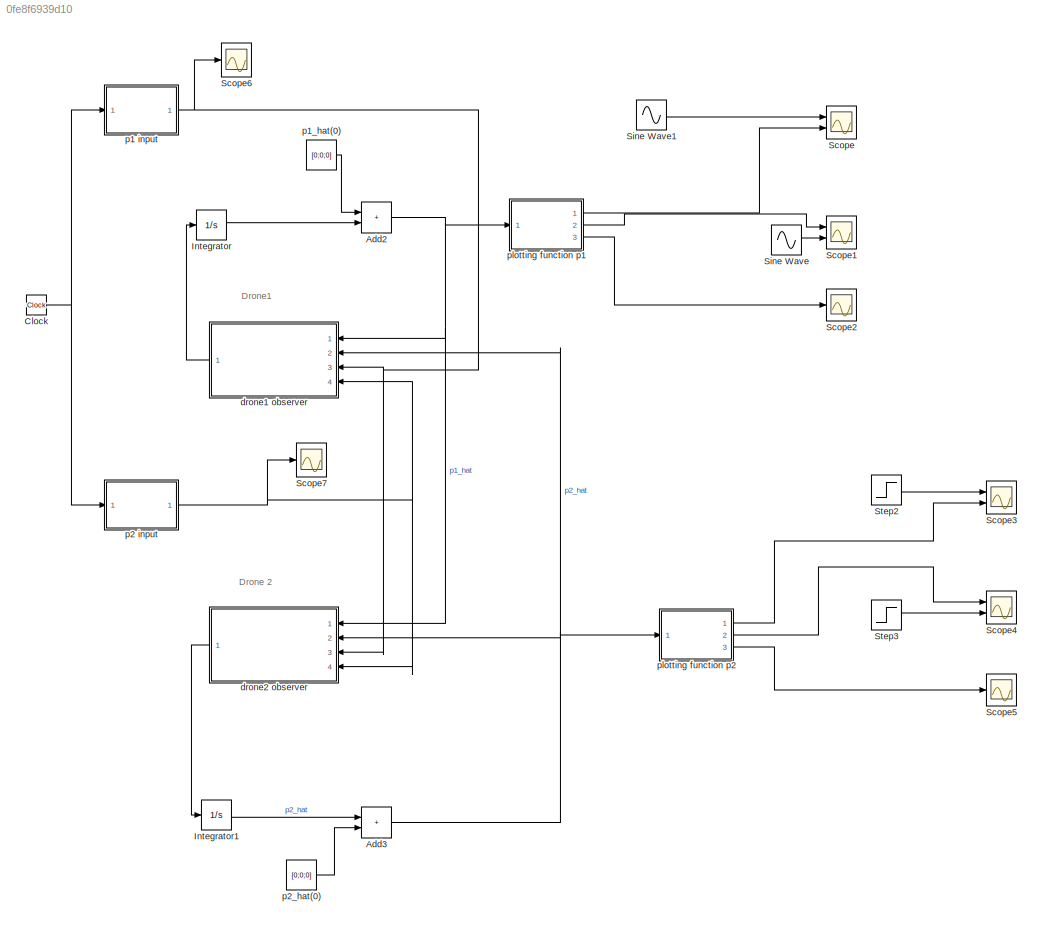
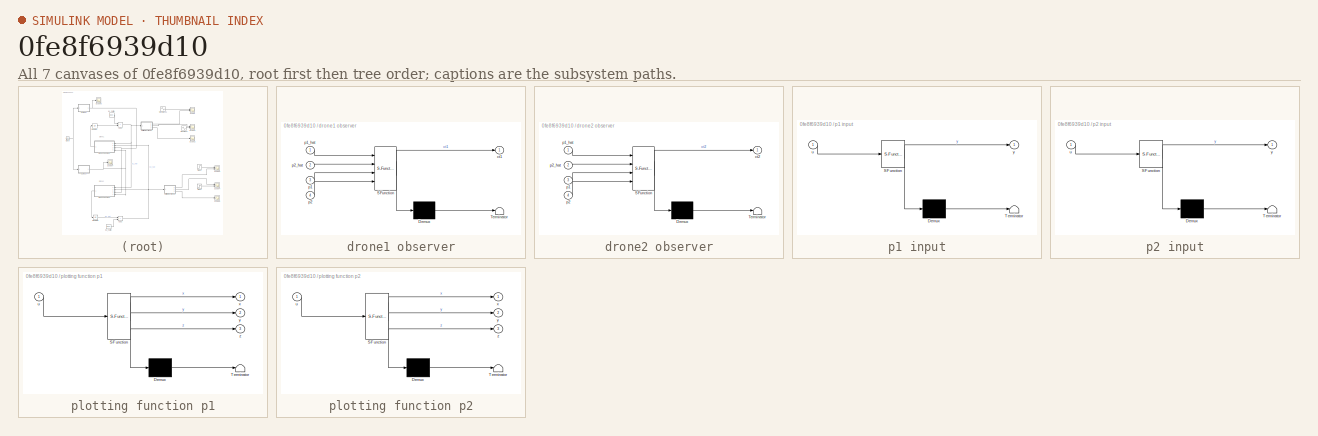
[diagram: thumbnail index - all 7 canvases of the model, root first then tree order]
MODEL slx_0fe8f6939d10
KIND model
CONFIG AbsTol = auto
CONFIG EnableMultiTasking = off
CONFIG FixedStep = auto
CONFIG MaxStep = auto
CONFIG MinStep = auto
CONFIG RelTol = 1e-3
CONFIG SampleTimeConstraint = Unconstrained
CONFIG SolverName = VariableStepAuto
CONFIG StartTime = 0.0
CONFIG StopTime = 20
BLOCK [Sum] Add2
  IconShape = rectangular
  Ports = [2, 1]
BLOCK [Sum] Add3
  IconShape = rectangular
  Ports = [2, 1]
BLOCK [Clock] Clock
BLOCK [Integrator] Integrator
  Ports = [1, 1]
BLOCK [Integrator] Integrator1
  Ports = [1, 1]
BLOCK [Scope] Scope
  Floating = off
  NumInputPorts = 2
  Ports = [2]
  ScopeSpecificationString = Simulink.scopes.TimeScopeBlockCfg('CurrentConfiguration', extmgr.ConfigurationSet(extmgr.Configuration('Core','General UI',true),extmgr.Configuration('Core','Source UI',true),extmgr.Configuration('Sources','WiredSimulink',true),extmgr.Configuration('Visuals','Time Domain',true,'SerializedDisplays',{struct('MinYLimReal','-2.47325','MaxYLimReal','1.00000','YLabelReal','','MinYLimMag','0.00000','MaxY...<+1403ch>
BLOCK [Scope] Scope1
  Floating = off
  NumInputPorts = 2
  Ports = [2]
  ScopeSpecificationString = Simulink.scopes.TimeScopeBlockCfg('CurrentConfiguration', extmgr.ConfigurationSet(extmgr.Configuration('Core','General UI',true),extmgr.Configuration('Core','Source UI',true),extmgr.Configuration('Sources','WiredSimulink',true,'DataLoggingVariableName','ScopeData1'),extmgr.Configuration('Visuals','Time Domain',true,'SerializedDisplays',{struct('MinYLimReal','-1.25761','MaxYLimReal','1.16915','YLab...<+1462ch>
BLOCK [Scope] Scope2
  Floating = off
  NumInputPorts = 1
  Ports = [1]
  ScopeSpecificationString = Simulink.scopes.TimeScopeBlockCfg('CurrentConfiguration', extmgr.ConfigurationSet(extmgr.Configuration('Core','General UI',true),extmgr.Configuration('Core','Source UI',true),extmgr.Configuration('Sources','WiredSimulink',true,'DataLoggingVariableName','ScopeData2'),extmgr.Configuration('Visuals','Time Domain',true,'SerializedDisplays',{struct('MinYLimReal','-1.00000','MaxYLimReal','1.00000','YLab...<+1381ch>
BLOCK [Scope] Scope3
  Floating = off
  NumInputPorts = 2
  Ports = [2]
  ScopeSpecificationString = Simulink.scopes.TimeScopeBlockCfg('CurrentConfiguration', extmgr.ConfigurationSet(extmgr.Configuration('Core','General UI',true),extmgr.Configuration('Core','Source UI',true),extmgr.Configuration('Sources','WiredSimulink',true,'DataLoggingVariableName','ScopeData1'),extmgr.Configuration('Visuals','Time Domain',true,'SerializedDisplays',{struct('MinYLimReal','-0.362','MaxYLimReal','2.26244','YLabel...<+1385ch>
BLOCK [Scope] Scope4
  Floating = off
  NumInputPorts = 2
  Ports = [2]
  ScopeSpecificationString = Simulink.scopes.TimeScopeBlockCfg('CurrentConfiguration', extmgr.ConfigurationSet(extmgr.Configuration('Core','General UI',true),extmgr.Configuration('Core','Source UI',true),extmgr.Configuration('Sources','WiredSimulink',true,'DataLoggingVariableName','ScopeData2'),extmgr.Configuration('Visuals','Time Domain',true,'SerializedDisplays',{struct('MinYLimReal','-0.25','MaxYLimReal','2.25','YLabelReal...<+1421ch>
BLOCK [Scope] Scope5
  Floating = off
  NumInputPorts = 1
  Ports = [1]
  ScopeSpecificationString = Simulink.scopes.TimeScopeBlockCfg('CurrentConfiguration', extmgr.ConfigurationSet(extmgr.Configuration('Core','General UI',true),extmgr.Configuration('Core','Source UI',true),extmgr.Configuration('Sources','WiredSimulink',true,'DataLoggingVariableName','ScopeData3'),extmgr.Configuration('Visuals','Time Domain',true,'SerializedDisplays',{struct('MinYLimReal','-1.00000','MaxYLimReal','1.00000','YLab...<+1381ch>
BLOCK [Scope] Scope6
  Floating = off
  NumInputPorts = 1
  Ports = [1]
  ScopeSpecificationString = Simulink.scopes.TimeScopeBlockCfg('CurrentConfiguration', extmgr.ConfigurationSet(extmgr.Configuration('Core','General UI',true),extmgr.Configuration('Core','Source UI',true),extmgr.Configuration('Sources','WiredSimulink',true,'DataLoggingVariableName','ScopeData1'),extmgr.Configuration('Visuals','Time Domain',true,'SerializedDisplays',{struct('MinYLimReal','-1.24999','MaxYLimReal','1.25','YLabelR...<+1383ch>
BLOCK [Scope] Scope7
  Floating = off
  NumInputPorts = 1
  Ports = [1]
  ScopeSpecificationString = Simulink.scopes.TimeScopeBlockCfg('CurrentConfiguration', extmgr.ConfigurationSet(extmgr.Configuration('Core','General UI',true),extmgr.Configuration('Core','Source UI',true),extmgr.Configuration('Sources','WiredSimulink',true,'DataLoggingVariableName','ScopeData1'),extmgr.Configuration('Visuals','Time Domain',true,'SerializedDisplays',{struct('MinYLimReal','-0.25','MaxYLimReal','2.25','YLabelReal...<+1377ch>
BLOCK [Sin] Sine Wave
  Ports = [0, 1]
  SampleTime = 0
BLOCK [Sin] Sine Wave1
  Phase = 1.57
  Ports = [0, 1]
  SampleTime = 0
BLOCK [Step] Step2
  After = 2
  SampleTime = 0
  Time = 0.1
BLOCK [Step] Step3
  After = 2
  SampleTime = 0
  Time = 0.1
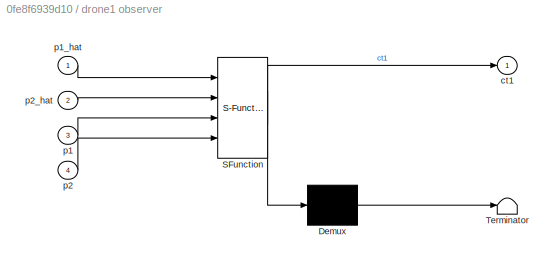
BLOCK [SubSystem] drone1 observer
  ErrorFcn = Stateflow.Translate.translate
  PermitHierarchicalResolution = ExplicitOnly
  Ports = [4, 1]
  RequestExecContextInheritance = off
  SFBlockType = MATLAB Function
  TreatAsAtomicUnit = on
BLOCK [Demux] drone1 observer/ Demux 
  Outputs = 1
  Ports = [1, 1]
BLOCK [S-Function] drone1 observer/ SFunction 
  EnableBusSupport = on
  FunctionName = sf_sfun
  Parameters = a1,a2,a3
  PortCounts = [4 2]
  Ports = [4, 2]
  SFcnIsStateOwnerBlock = off
  SFunctionDeploymentMode = off
  Tag = Stateflow S-Function 2
BLOCK [Terminator] drone1 observer/ Terminator 
BLOCK [Outport] drone1 observer/ct1
BLOCK [Inport] drone1 observer/p1
  Port = 3
BLOCK [Inport] drone1 observer/p1_hat
BLOCK [Inport] drone1 observer/p2
  Port = 4
BLOCK [Inport] drone1 observer/p2_hat
  Port = 2
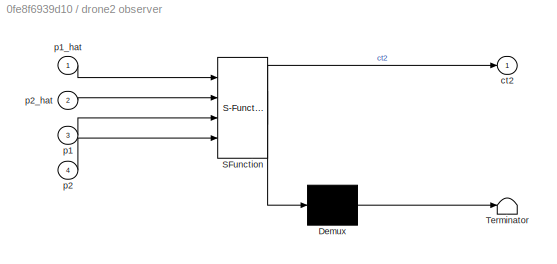
BLOCK [SubSystem] drone2 observer
  ErrorFcn = Stateflow.Translate.translate
  PermitHierarchicalResolution = ExplicitOnly
  Ports = [4, 1]
  RequestExecContextInheritance = off
  SFBlockType = MATLAB Function
  TreatAsAtomicUnit = on
BLOCK [Demux] drone2 observer/ Demux 
  Outputs = 1
  Ports = [1, 1]
BLOCK [S-Function] drone2 observer/ SFunction 
  EnableBusSupport = on
  FunctionName = sf_sfun
  Parameters = a1,a2,a3
  PortCounts = [4 2]
  Ports = [4, 2]
  SFcnIsStateOwnerBlock = off
  SFunctionDeploymentMode = off
  Tag = Stateflow S-Function 1
BLOCK [Terminator] drone2 observer/ Terminator 
BLOCK [Outport] drone2 observer/ct2
BLOCK [Inport] drone2 observer/p1
  Port = 3
BLOCK [Inport] drone2 observer/p1_hat
BLOCK [Inport] drone2 observer/p2
  Port = 4
BLOCK [Inport] drone2 observer/p2_hat
  Port = 2
BLOCK [SubSystem] p1 input
  ErrorFcn = Stateflow.Translate.translate
  PermitHierarchicalResolution = ExplicitOnly
  Ports = [1, 1]
  RequestExecContextInheritance = off
  SFBlockType = MATLAB Function
  SystemSampleTime = 0.1
  TreatAsAtomicUnit = on
BLOCK [Demux] p1 input/ Demux 
  Outputs = 1
  Ports = [1, 1]
BLOCK [S-Function] p1 input/ SFunction 
  EnableBusSupport = on
  FunctionName = sf_sfun
  PortCounts = [1 2]
  Ports = [1, 2]
  SFcnIsStateOwnerBlock = off
  SFunctionDeploymentMode = off
  Tag = Stateflow S-Function 5
BLOCK [Terminator] p1 input/ Terminator 
BLOCK [Inport] p1 input/u
BLOCK [Outport] p1 input/y
BLOCK [Constant] p1_hat(0)
  Value = [0;0;0]
  VectorParams1D = off
BLOCK [SubSystem] p2 input
  ErrorFcn = Stateflow.Translate.translate
  PermitHierarchicalResolution = ExplicitOnly
  Ports = [1, 1]
  RequestExecContextInheritance = off
  SFBlockType = MATLAB Function
  SystemSampleTime = 0.1
  TreatAsAtomicUnit = on
BLOCK [Demux] p2 input/ Demux 
  Outputs = 1
  Ports = [1, 1]
BLOCK [S-Function] p2 input/ SFunction 
  EnableBusSupport = on
  FunctionName = sf_sfun
  PortCounts = [1 2]
  Ports = [1, 2]
  SFcnIsStateOwnerBlock = off
  SFunctionDeploymentMode = off
  Tag = Stateflow S-Function 6
BLOCK [Terminator] p2 input/ Terminator 
BLOCK [Inport] p2 input/u
BLOCK [Outport] p2 input/y
BLOCK [Constant] p2_hat(0)
  Value = [0;0;0]
  VectorParams1D = off
BLOCK [SubSystem] plotting function p1
  ErrorFcn = Stateflow.Translate.translate
  PermitHierarchicalResolution = ExplicitOnly
  Ports = [1, 3]
  RequestExecContextInheritance = off
  SFBlockType = MATLAB Function
  TreatAsAtomicUnit = on
BLOCK [Demux] plotting function p1/ Demux 
  Outputs = 1
  Ports = [1, 1]
BLOCK [S-Function] plotting function p1/ SFunction 
  EnableBusSupport = on
  FunctionName = sf_sfun
  PortCounts = [1 4]
  Ports = [1, 4]
  SFcnIsStateOwnerBlock = off
  SFunctionDeploymentMode = off
  Tag = Stateflow S-Function 3
BLOCK [Terminator] plotting function p1/ Terminator 
BLOCK [Inport] plotting function p1/u
BLOCK [Outport] plotting function p1/x
BLOCK [Outport] plotting function p1/y
  Port = 2
BLOCK [Outport] plotting function p1/z
  Port = 3
BLOCK [SubSystem] plotting function p2
  ErrorFcn = Stateflow.Translate.translate
  PermitHierarchicalResolution = ExplicitOnly
  Ports = [1, 3]
  RequestExecContextInheritance = off
  SFBlockType = MATLAB Function
  TreatAsAtomicUnit = on
BLOCK [Demux] plotting function p2/ Demux 
  Outputs = 1
  Ports = [1, 1]
BLOCK [S-Function] plotting function p2/ SFunction 
  EnableBusSupport = on
  FunctionName = sf_sfun
  PortCounts = [1 4]
  Ports = [1, 4]
  SFcnIsStateOwnerBlock = off
  SFunctionDeploymentMode = off
  Tag = Stateflow S-Function 4
BLOCK [Terminator] plotting function p2/ Terminator 
BLOCK [Inport] plotting function p2/u
BLOCK [Outport] plotting function p2/x
BLOCK [Outport] plotting function p2/y
  Port = 2
BLOCK [Outport] plotting function p2/z
  Port = 3
ANNOTATION (root): Drone 2
ANNOTATION (root): Drone1
NET Add2:1 -> drone1 observer:1, drone2 observer:1, plotting function p1:1
NET Add3:1 -> drone1 observer:2, drone2 observer:2, plotting function p2:1
NET Clock:1 -> p1 input:1, p2 input:1
LINE Integrator1:1 -> Add3:1
LINE Integrator:1 -> Add2:2
LINE Sine Wave1:1 -> Scope:1
LINE Sine Wave:1 -> Scope1:2
LINE Step2:1 -> Scope3:1
LINE Step3:1 -> Scope4:2
LINE drone1 observer:1 -> Integrator:1
LINE drone2 observer:1 -> Integrator1:1
NET p1 input:1 -> Scope6:1, drone1 observer:3, drone2 observer:3
LINE p1_hat(0):1 -> Add2:1
NET p2 input:1 -> Scope7:1, drone1 observer:4, drone2 observer:4
LINE p2_hat(0):1 -> Add3:2
LINE plotting function p1:1 -> Scope:2
LINE plotting function p1:2 -> Scope1:1
LINE plotting function p1:3 -> Scope2:1
LINE plotting function p2:1 -> Scope3:2
LINE plotting function p2:2 -> Scope4:1
LINE plotting function p2:3 -> Scope5:1
note: NET lines group one-source signal fan-out (src -> all destinations, sorted); 1:1 wires keep LINE
CHART drone2 observer states=1 transitions=1
  STATE_LABEL 'eML_blk_kernel()'
  STATE_LABEL 'SCRIPT:\nfunction ct2 = fcn2(p1_hat, p2_hat,a2, a3, p1, p2, a1)\n\n% vel2 considering the second drone is just hovering in 2d space\n    vel2 = [0;0;0];\n    \n%calculating the ranges manually\n    d11 = norm(p1-a1);\n    d13 = norm(p1-a3);\n    d22 = norm(p2-a2);\n    d23 = norm(p2-a3);\n    q12 = norm(p1-p2);\n    q21 = norm(p1-p2);\n    \n% our measured values\n    y12 = d22^2 - d23^2 + norm(a3)^2 - norm(a2)^...<+305ch>'
CHART drone1 observer states=1 transitions=1
  STATE_LABEL 'eML_blk_kernel()'
  STATE_LABEL "SCRIPT:\n% function ct1 = fcn1(p1_hat, p2_hat ,a1, a3, d11, d13, d23, q21)\n% \n% %     a1(1)\n%     vel1 = [0;0;0];\n%     y11 = d11^2 - d13^2 + norm(a3)^2 - norm(a1)^2;\n%     y21 = d23^2 + d13^2 - q21^2 - 2*norm(a3)^2;\n%     c13 = a3 - a1;\n%     k11 = c13; k21 = p2_hat - a3;\n%     ct1_1 = k11*(y11 - 2*(c13.')*p1_hat);\n%     ct1_2 = k21*(y21 + 2*(a3.')*(p1_hat + p2_hat) - 2*(p1_hat.')*(p2_hat));\n%    ...<+854ch>"
CHART plotting function p1 states=1 transitions=1
  STATE_LABEL 'eML_blk_kernel()'
  STATE_LABEL 'SCRIPT:\nfunction [x,y,z]= fcn(u)\n%     x = u(1);\n    x = u(1);\n    y = u(2);\n    z = u(3);\n% y = u;\n'
CHART plotting function p2 states=1 transitions=1
  STATE_LABEL 'eML_blk_kernel()'
  STATE_LABEL 'SCRIPT:\nfunction [x,y,z]= fcn(u)\n    x = u(1);\n    y = u(2);\n    z = u(3);\n% y = u;\n'
CHART p1 input states=1 transitions=1
  STATE_LABEL 'eML_blk_kernel()'
  STATE_LABEL 'SCRIPT:\nfunction y = fcn(u)\n    t = linspace(0,5);\n    xc = cos(u);\n    yc = sin(u);\ny = [xc;yc;0]; %generating p1 input for a circle trajectory\n'
CHART p2 input states=1 transitions=1
  STATE_LABEL 'eML_blk_kernel()'
  STATE_LABEL 'SCRIPT:\nfunction y = fcn(u)\n    t = linspace(0,5);\n    xc = sin(u);\n% y = xc;\ny = [2;2;0]; % constant hover trajectory for p2\n'
CHART  states=0 transitions=0
CHART  states=0 transitions=0
CHART  states=0 transitions=0
CHART  states=0 transitions=0
CHART  states=0 transitions=0
CHART  states=0 transitions=0
